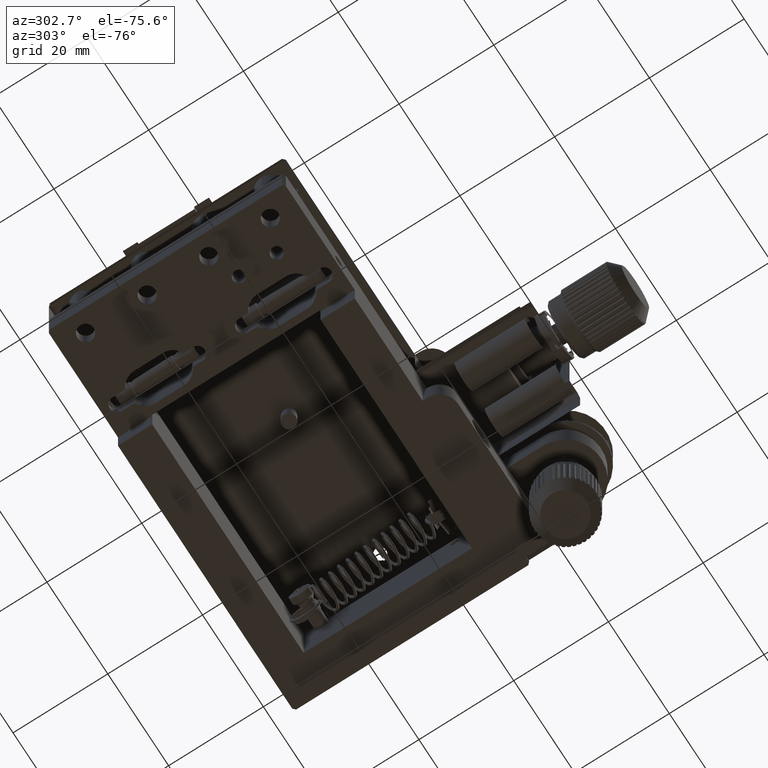
[diagram: clean part render]
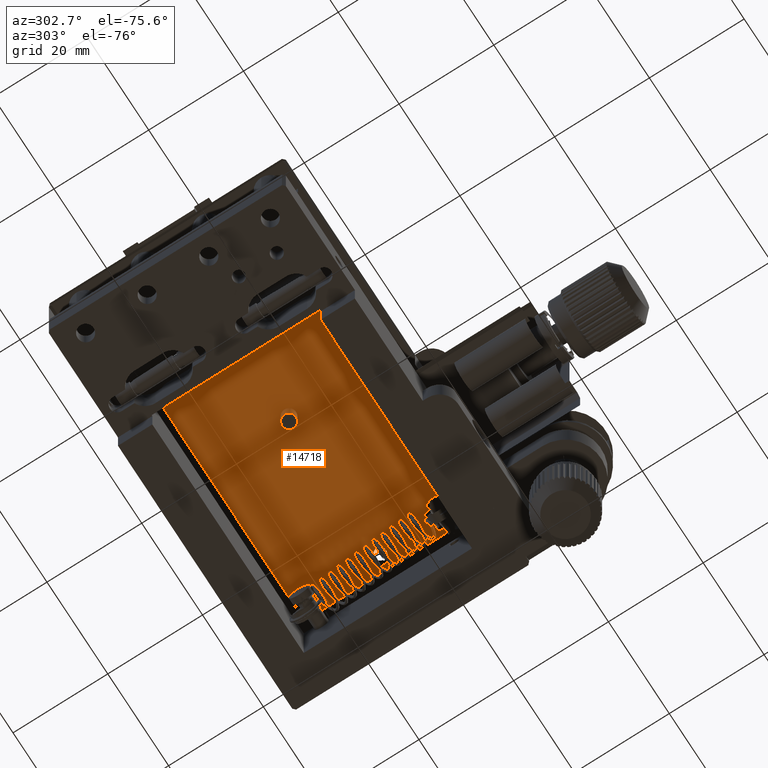
[diagram: same view with one face highlighted and labeled with its STEP entity id]
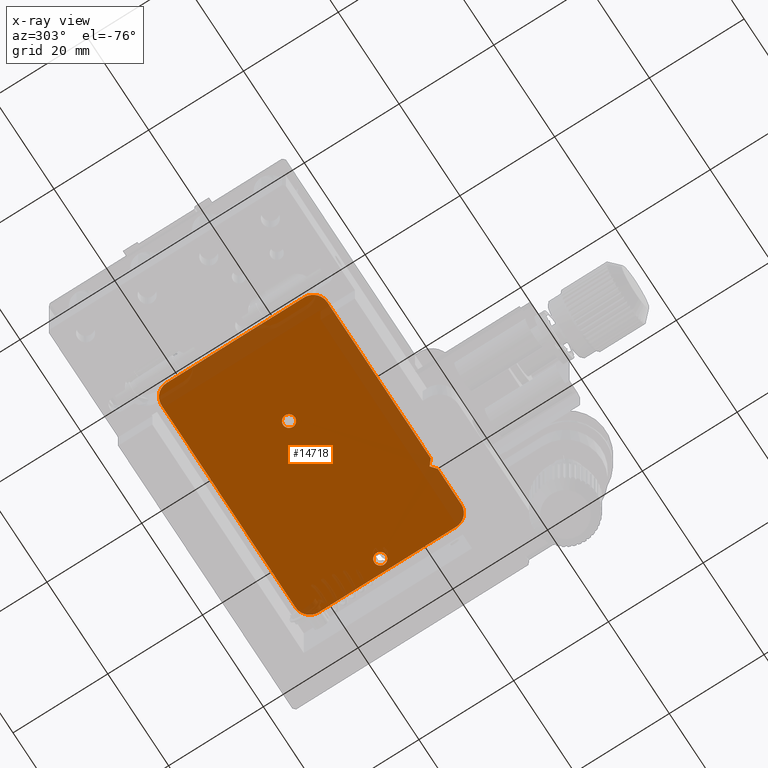
[diagram: x-ray of the same camera — body ghosted, the highlighted face saturated]
A machine part, auxiliary view. The second image highlights one B-rep face of the part: STEP entity #14718.
The next image is the same camera in x-ray: the body ghosted, the highlighted face saturated — about 14% of this face is hidden behind the body in this view.
In plain terms, the highlighted face is a freeform B-spline surface patch.
Its self-contained STEP definition (entity closure, byte-faithful):
#82 = EDGE_LOOP ( 'NONE', ( #16451, #20961 ) ) ;
#109 = B_SPLINE_CURVE_WITH_KNOTS ( 'NONE', 3,
 ( #25756, #23165, #11212, #28169, #490, #11932, #16737, #11752, #14715, #34398, #9152, #25395, #30729, #5652, #5469, #119, #22618, #29056, #29585, #34938, #23522, #3774, #1564, #17825, #15078, #15599, #32353, #12466, #9508, #7094, #21125, #12829, #18005, #26828 ),
 .UNSPECIFIED., .F., .F.,
 ( 4, 1, 1, 2, 2, 2, 1, 1, 2, 2, 2, 1, 1, 2, 2, 2, 1, 1, 2, 2, 4 ),
 ( 0.000000000000000000, 0.06250000000001681988, 0.09375000000002522982, 0.1093750000000286576, 0.1250000000000320854, 0.2500000000000534017, 0.3125000000000622835, 0.3437500000000686673, 0.3593750000000696110, 0.3750000000000705547, 0.5000000000000831557, 0.5625000000000921485, 0.5937500000000939249, 0.6093750000000921485, 0.6250000000000903722, 0.7500000000000577316, 0.8125000000000414113, 0.8437500000000344169, 0.8593750000000306422, 0.8750000000000268674, 1.000000000000000000 ),
 .UNSPECIFIED. ) ;
#119 = CARTESIAN_POINT ( 'NONE',  ( 37.56938166610387952, -7.655620441821686661, 13.50396032735409868 ) ) ;
#137 = CARTESIAN_POINT ( 'NONE',  ( 7.060406818835861742, -7.674041039078614013, 13.50396032735409513 ) ) ;
#326 = CARTESIAN_POINT ( 'NONE',  ( 6.311881144963746415, -7.257975752834531669, 13.50396032735410046 ) ) ;
#490 = CARTESIAN_POINT ( 'NONE',  ( 38.44588200976667736, -6.820653440484450769, 13.50396032735410046 ) ) ;
#504 = CARTESIAN_POINT ( 'NONE',  ( 6.006677295956150964, -6.594095942147188083, 13.50396032735410401 ) ) ;
#889 = CARTESIAN_POINT ( 'NONE',  ( 39.61636223166719617, 8.065051829121900440, 13.50396032735409868 ) ) ;
#1301 = CARTESIAN_POINT ( 'NONE',  ( 6.086527117246703256, -5.994848094405099026, 13.50396032735410046 ) ) ;
#1434 = EDGE_CURVE ( 'NONE', #1539, #27641, #13493, .T. ) ;
#1446 = CARTESIAN_POINT ( 'NONE',  ( 38.13192639974163001, -23.55436471481692351, 13.50396032735409690 ) ) ;
#1458 = CARTESIAN_POINT ( 'NONE',  ( 36.00667729595619448, -6.434948170878140417, 13.50396032735409868 ) ) ;
#1511 = FACE_BOUND ( 'NONE', #82, .T. ) ;
#1539 = VERTEX_POINT ( 'NONE', #12953 ) ;
#1564 = CARTESIAN_POINT ( 'NONE',  ( 36.81657721948447914, -7.605098349589458628, 13.50396032735410046 ) ) ;
#1626 = CARTESIAN_POINT ( 'NONE',  ( 38.45639688987188265, -23.33754482375473671, 13.50396032735410046 ) ) ;
#1642 = CARTESIAN_POINT ( 'NONE',  ( 38.47742242139879210, -6.122427603908243476, 13.50396032735410046 ) ) ;
#1832 = CARTESIAN_POINT ( 'NONE',  ( 37.87694216680466042, -5.336031213648924520, 13.50396032735410223 ) ) ;
#1956 = EDGE_LOOP ( 'NONE', ( #32575, #20954 ) ) ;
#2035 = CARTESIAN_POINT ( 'NONE',  ( 7.679672434682926152, -5.258525470181089290, 13.50396032735409513 ) ) ;
#2222 = CARTESIAN_POINT ( 'NONE',  ( 7.586010348638112966, -5.227868683269324634, 13.50396032735409868 ) ) ;
#2502 =( BOUNDED_CURVE ( )  B_SPLINE_CURVE ( 1, ( #23483, #20028 ),
 .UNSPECIFIED., .F., .F. ) 
 B_SPLINE_CURVE_WITH_KNOTS ( ( 2, 2 ),
 ( 0.000000000000000000, 1.000000000000000000 ),
 .UNSPECIFIED. ) 
 CURVE ( )  GEOMETRIC_REPRESENTATION_ITEM ( )  RATIONAL_B_SPLINE_CURVE ( ( 0.5217803813052015460, 0.5217803813052015460 ) ) 
 REPRESENTATION_ITEM ( '' )  );
#2725 = CARTESIAN_POINT ( 'NONE',  ( 6.110831337281052988, -6.934960762351534136, 13.50396032735409868 ) ) ;
#2752 = CARTESIAN_POINT ( 'NONE',  ( -10.38363776833280028, 8.065051829121859583, 13.50396032735409868 ) ) ;
#2821 = VERTEX_POINT ( 'NONE', #32119 ) ;
#3077 = VERTEX_POINT ( 'NONE', #35815 ) ;
#3085 = CARTESIAN_POINT ( 'NONE',  ( 7.981092332771297038, -7.460222803266768565, 13.50396032735409513 ) ) ;
#3168 = ORIENTED_EDGE ( 'NONE', *, *, #22809, .T. ) ;
#3265 = CARTESIAN_POINT ( 'NONE',  ( 6.101755638267483128, -6.913516285334527112, 13.50396032735409868 ) ) ;
#3347 = CARTESIAN_POINT ( 'NONE',  ( 6.251082044068543730, -5.672890029750522700, 13.50396032735410046 ) ) ;
#3476 = ORIENTED_EDGE ( 'NONE', *, *, #36439, .F. ) ;
#3774 = CARTESIAN_POINT ( 'NONE',  ( 36.83368215723641725, -7.611370871575199537, 13.50396032735409868 ) ) ;
#4031 = CARTESIAN_POINT ( 'NONE',  ( 37.67967243468280003, -5.258525470181121264, 13.50396032735410046 ) ) ;
#4054 = CARTESIAN_POINT ( 'NONE',  ( 6.067472582145574833, -6.049242901289396457, 13.50396032735410401 ) ) ;
#4393 = CARTESIAN_POINT ( 'NONE',  ( 36.43364970716041995, -5.490152026727568746, 13.50396032735409868 ) ) ;
#4783 = CARTESIAN_POINT ( 'NONE',  ( 8.506677295956144746, -6.275800399609041236, 13.50396032735410046 ) ) ;
#4966 = CARTESIAN_POINT ( 'NONE',  ( 8.506677295956150076, -6.434948170878119988, 13.50396032735409868 ) ) ;
#5005 = EDGE_CURVE ( 'NONE', #24343, #21466, #6334, .T. ) ;
#5469 = CARTESIAN_POINT ( 'NONE',  ( 37.73522243500902107, -7.589878935379255509, 13.50396032735410046 ) ) ;
#5652 = CARTESIAN_POINT ( 'NONE',  ( 37.75668989063014891, -7.580794126352358830, 13.50396032735410223 ) ) ;
#5724 = CARTESIAN_POINT ( 'NONE',  ( 36.61636223166719617, 11.06505182912189866, 13.50396032735409868 ) ) ;
#5848 = CARTESIAN_POINT ( 'NONE',  ( 7.756689890629166584, -7.580794126347959683, 13.50396032735410401 ) ) ;
#6029 = CARTESIAN_POINT ( 'NONE',  ( 6.156569483213893967, -7.031489960712089982, 13.50396032735410223 ) ) ;
#6159 = ORIENTED_EDGE ( 'NONE', *, *, #29533, .F. ) ;
#6334 = B_SPLINE_CURVE_WITH_KNOTS ( 'NONE', 1,
 ( #6557, #26843 ),
 .UNSPECIFIED., .F., .F.,
 ( 2, 2 ),
 ( 0.000000000000000000, 1.000000000000000000 ),
 .UNSPECIFIED. ) ;
#6557 = CARTESIAN_POINT ( 'NONE',  ( 39.61636223166719617, 8.065051829121900440, 13.50396032735409868 ) ) ;
#6803 = CARTESIAN_POINT ( 'NONE',  ( 36.53226225911733849, -5.409673538496440059, 13.50396032735409690 ) ) ;
#7008 = CARTESIAN_POINT ( 'NONE',  ( 7.696777372422936025, -5.264797992163294360, 13.50396032735409868 ) ) ;
#7064 = CARTESIAN_POINT ( 'NONE',  ( -10.38363776833280028, -20.93494817087819726, 13.50396032735409868 ) ) ;
#7094 = CARTESIAN_POINT ( 'NONE',  ( 36.11083133727169781, -6.934960762343051144, 13.50396032735410046 ) ) ;
#7171 = CARTESIAN_POINT ( 'NONE',  ( 36.00667729595619448, -6.355567514688370778, 13.50396032735409690 ) ) ;
#7356 = ORIENTED_EDGE ( 'NONE', *, *, #21259, .F. ) ;
#7360 = CARTESIAN_POINT ( 'NONE',  ( 38.38477252216718227, -5.895957464291073258, 13.50396032735409868 ) ) ;
#7564 = CARTESIAN_POINT ( 'NONE',  ( 7.642305196319972183, -5.245712866958010423, 13.50396032735409868 ) ) ;
#7741 = CARTESIAN_POINT ( 'NONE',  ( -7.383637768332810047, 11.06505182912189866, 13.50396032735409868 ) ) ;
#7782 = CARTESIAN_POINT ( 'NONE',  ( 28.90232121969510004, -23.93494817087819726, 13.50396032735409868 ) ) ;
#8272 = CARTESIAN_POINT ( 'NONE',  ( 8.495706717997153490, -6.631379117531666978, 13.50396032735409513 ) ) ;
#8351 = VERTEX_POINT ( 'NONE', #27105 ) ;
#8637 = CARTESIAN_POINT ( 'NONE',  ( 6.927344243280642466, -7.642027658491671538, 13.50396032735410046 ) ) ;
#8755 = CARTESIAN_POINT ( 'NONE',  ( -7.383637768332810047, -23.93494817087815107, 13.50396032735409868 ) ) ;
#8761 =( BOUNDED_CURVE ( )  B_SPLINE_CURVE ( 3, ( #2752, #10518, #33539, #7741 ),
 .UNSPECIFIED., .F., .F. ) 
 B_SPLINE_CURVE_WITH_KNOTS ( ( 4, 4 ),
 ( 0.000000000000000000, 1.000000000000000000 ),
 .UNSPECIFIED. ) 
 CURVE ( )  GEOMETRIC_REPRESENTATION_ITEM ( )  RATIONAL_B_SPLINE_CURVE ( ( 1.000000000000000000, 0.8047378541243650485, 0.8047378541243650485, 1.000000000000000000 ) ) 
 REPRESENTATION_ITEM ( '' )  );
#8807 = CARTESIAN_POINT ( 'NONE',  ( 8.506677295956146523, -6.514328827040709591, 13.50396032735410046 ) ) ;
#9066 = CARTESIAN_POINT ( 'NONE',  ( 6.943972925789100969, -5.214275899934610159, 13.50396032735409690 ) ) ;
#9152 = CARTESIAN_POINT ( 'NONE',  ( 37.98109233277499186, -7.460222803283002690, 13.50396032735409513 ) ) ;
#9508 = CARTESIAN_POINT ( 'NONE',  ( 36.12858206971723973, -6.973938877445245765, 13.50396032735409868 ) ) ;
#9579 = CARTESIAN_POINT ( 'NONE',  ( 36.25108204409819734, -5.672890029729671824, 13.50396032735409868 ) ) ;
#9786 = CARTESIAN_POINT ( 'NONE',  ( 6.532262259143150729, -5.409673538478262600, 13.50396032735409690 ) ) ;
#9951 = CARTESIAN_POINT ( 'NONE',  ( 36.71768658360302595, -5.306852950428917026, 13.50396032735410223 ) ) ;
#10338 = CARTESIAN_POINT ( 'NONE',  ( 8.477422421398834729, -6.122427603958259468, 13.50396032735410223 ) ) ;
#10386 = VERTEX_POINT ( 'NONE', #18361 ) ;
#10518 = CARTESIAN_POINT ( 'NONE',  ( -10.38363776833280205, 9.822411142002563267, 13.50396032735409513 ) ) ;
#11128 = B_SPLINE_CURVE_WITH_KNOTS ( 'NONE', 3,
 ( #1458, #7171, #34835, #12359, #12727, #23957, #35019, #35202, #9579, #4393, #6803, #32789, #9951, #20839, #21202, #27102, #32607, #15145, #29662, #29302, #15860, #4031, #24142, #1832, #32432, #18260, #18079, #26908, #7360, #21024, #18631, #1642, #23594, #12902 ),
 .UNSPECIFIED., .F., .F.,
 ( 4, 1, 1, 2, 2, 2, 1, 1, 2, 2, 2, 1, 1, 2, 2, 2, 1, 1, 2, 2, 4 ),
 ( 0.000000000000000000, 0.06249999999999829303, 0.09374999999999744649, 0.1093749999999970163, 0.1249999999999965861, 0.2499999999999778788, 0.3124999999999705236, 0.3437499999999666933, 0.3593749999999647504, 0.3749999999999628630, 0.4999999999999769629, 0.5624999999999840128, 0.5937499999999903411, 0.6093749999999907851, 0.6249999999999912292, 0.7499999999999955591, 0.8124999999999980016, 0.8437500000000003331, 0.8593750000000001110, 0.8749999999999997780, 1.000000000000000000 ),
 .UNSPECIFIED. ) ;
#11212 = CARTESIAN_POINT ( 'NONE',  ( 38.49570671799709487, -6.631379117546980062, 13.50396032735409690 ) ) ;
#11405 = CARTESIAN_POINT ( 'NONE',  ( 8.463709198950091661, -6.764401575703583802, 13.50396032735409690 ) ) ;
#11583 = CARTESIAN_POINT ( 'NONE',  ( -10.38363776833280028, -20.93494817087819726, 13.50396032735409868 ) ) ;
#11752 = CARTESIAN_POINT ( 'NONE',  ( 38.35559425321162763, -7.055213041673804142, 13.50396032735410046 ) ) ;
#11848 = CARTESIAN_POINT ( 'NONE',  ( 6.756664701283704666, -5.289102215405268481, 13.50396032735410046 ) ) ;
#11932 = CARTESIAN_POINT ( 'NONE',  ( 38.43308300214783202, -6.857986292517420424, 13.50396032735409690 ) ) ;
#12324 = CARTESIAN_POINT ( 'NONE',  ( 38.36008467261316923, 11.06505182912189866, 13.50396032735411289 ) ) ;
#12347 = CARTESIAN_POINT ( 'NONE',  ( 37.01416963958008211, -23.93494817087820081, 13.50396032735410046 ) ) ;
#12359 = CARTESIAN_POINT ( 'NONE',  ( 36.04964539296226178, -6.105494766016980712, 13.50396032735409868 ) ) ;
#12376 = CARTESIAN_POINT ( 'NONE',  ( 6.006677295956169615, -6.434948170878119988, 13.50396032735409868 ) ) ;
#12428 = CARTESIAN_POINT ( 'NONE',  ( 26.61103337221720011, -23.93494817087819726, 13.50396032735409868 ) ) ;
#12466 = CARTESIAN_POINT ( 'NONE',  ( 36.15656948318763142, -7.031489960688215746, 13.50396032735410401 ) ) ;
#12569 = CARTESIAN_POINT ( 'NONE',  ( 39.61636223166719617, -20.93494817087819726, 13.50396032735409868 ) ) ;
#12724 = EDGE_CURVE ( 'NONE', #3077, #34511, #11128, .T. ) ;
#12727 = CARTESIAN_POINT ( 'NONE',  ( 36.06747258214563345, -6.049242901256245197, 13.50396032735410401 ) ) ;
#12746 = CARTESIAN_POINT ( 'NONE',  ( 8.201473446950966917, -5.611920588927716835, 13.50396032735410046 ) ) ;
#12829 = CARTESIAN_POINT ( 'NONE',  ( 36.03593217051352582, -6.747468737738573807, 13.50396032735409690 ) ) ;
#12849 = B_SPLINE_CURVE_WITH_KNOTS ( 'NONE', 3,
 ( #12376, #23612, #31548, #20861, #4054, #32083, #1301, #23792, #3347, #35041, #9786, #31371, #25852, #11848, #34315, #9066, #20331, #15881, #13488, #2222, #7564, #2035, #7008, #24728, #30240, #12746, #32266, #21591, #24536, #15696, #15522, #10338, #4783, #4966 ),
 .UNSPECIFIED., .F., .F.,
 ( 4, 1, 1, 2, 2, 2, 1, 1, 2, 2, 2, 1, 1, 2, 2, 2, 1, 1, 2, 2, 4 ),
 ( 0.000000000000000000, 0.06249999999999890365, 0.09374999999999829303, 0.1093749999999980849, 0.1249999999999978628, 0.2499999999999993339, 0.3125000000000000555, 0.3437500000000004996, 0.3593750000000009992, 0.3750000000000014988, 0.5000000000000044409, 0.5625000000000058842, 0.5937500000000063283, 0.6093750000000066613, 0.6250000000000067724, 0.7500000000000071054, 0.8125000000000074385, 0.8437500000000072164, 0.8593750000000067724, 0.8750000000000064393, 1.000000000000000000 ),
 .UNSPECIFIED. ) ;
#12902 = CARTESIAN_POINT ( 'NONE',  ( 38.50667729595609501, -6.434948170878140417, 13.50396032735409868 ) ) ;
#12919 = B_SPLINE_SURFACE_WITH_KNOTS ( 'NONE', 1, 1, ( 
 ( #34884, #24011 ),
 ( #35254, #16284 ) ),
 .UNSPECIFIED., .F., .F., .F.,
 ( 2, 2 ),
 ( 2, 2 ),
 ( 0.000000000000000000, 1.000000000000000000 ),
 ( 0.000000000000000000, 1.000000000000000000 ),
 .UNSPECIFIED. ) ;
#12953 = CARTESIAN_POINT ( 'NONE',  ( 28.90232121969510004, -23.93494817087819726, 13.50396032735409868 ) ) ;
#13488 = CARTESIAN_POINT ( 'NONE',  ( 7.452947773085051075, -5.195855302683958676, 13.50396032735410223 ) ) ;
#13493 =( BOUNDED_CURVE ( )  B_SPLINE_CURVE ( 1, ( #7782, #30449 ),
 .UNSPECIFIED., .F., .F. ) 
 B_SPLINE_CURVE_WITH_KNOTS ( ( 2, 2 ),
 ( 0.000000000000000000, 1.000000000000000000 ),
 .UNSPECIFIED. ) 
 CURVE ( )  GEOMETRIC_REPRESENTATION_ITEM ( )  RATIONAL_B_SPLINE_CURVE ( ( 0.5217803813051979933, 0.5217803813051981043 ) ) 
 REPRESENTATION_ITEM ( '' )  );
#13670 = B_SPLINE_CURVE_WITH_KNOTS ( 'NONE', 1,
 ( #13777, #30709 ),
 .UNSPECIFIED., .F., .F.,
 ( 2, 2 ),
 ( 0.000000000000000000, 1.000000000000000000 ),
 .UNSPECIFIED. ) ;
#13742 = CARTESIAN_POINT ( 'NONE',  ( -10.38363776833280028, -20.93494817087819726, 13.50396032735409868 ) ) ;
#13777 = CARTESIAN_POINT ( 'NONE',  ( -7.383637768332810047, 11.06505182912189866, 13.50396032735409868 ) ) ;
#13918 = CARTESIAN_POINT ( 'NONE',  ( 36.61636223166719617, -23.93494817087819726, 13.50396032735409868 ) ) ;
#13991 = CARTESIAN_POINT ( 'NONE',  ( 6.035932170513483186, -6.747468737797960081, 13.50396032735410223 ) ) ;
#13993 = ORIENTED_EDGE ( 'NONE', *, *, #32907, .F. ) ;
#14117 = ORIENTED_EDGE ( 'NONE', *, *, #1434, .F. ) ;
#14178 = CARTESIAN_POINT ( 'NONE',  ( 8.506677295956150076, -6.434948170878119988, 13.50396032735409868 ) ) ;
#14365 = CARTESIAN_POINT ( 'NONE',  ( 7.415255214529095085, -7.684875660981574264, 13.50396032735409868 ) ) ;
#14715 = CARTESIAN_POINT ( 'NONE',  ( 38.26227254783697163, -7.197006312000103989, 13.50396032735409868 ) ) ;
#14718 = ADVANCED_FACE ( 'NONE', ( #18309, #1511, #31931 ), #12919, .T. ) ;
#15078 = CARTESIAN_POINT ( 'NONE',  ( 36.49461916853167764, -7.440543436451475756, 13.50396032735409690 ) ) ;
#15145 = CARTESIAN_POINT ( 'NONE',  ( 37.33596625524702262, -5.184911915933499316, 13.50396032735409335 ) ) ;
#15329 = EDGE_CURVE ( 'NONE', #22085, #2821, #21479, .T. ) ;
#15522 = CARTESIAN_POINT ( 'NONE',  ( 8.411598953644869425, -5.956380056421742175, 13.50396032735409868 ) ) ;
#15599 = CARTESIAN_POINT ( 'NONE',  ( 36.31188114494374730, -7.257975752816359538, 13.50396032735410046 ) ) ;
#15605 = EDGE_CURVE ( 'NONE', #2821, #10386, #8761, .T. ) ;
#15696 = CARTESIAN_POINT ( 'NONE',  ( 8.402523254632402683, -5.934935579407537354, 13.50396032735409868 ) ) ;
#15860 = CARTESIAN_POINT ( 'NONE',  ( 37.64230519631963290, -5.245712866958042397, 13.50396032735410046 ) ) ;
#15881 = CARTESIAN_POINT ( 'NONE',  ( 7.335966255247496903, -5.184911915933466453, 13.50396032735410223 ) ) ;
#16247 = CARTESIAN_POINT ( 'NONE',  ( -7.383637768332810047, -23.93494817087815107, 13.50396032735409868 ) ) ;
#16284 = CARTESIAN_POINT ( 'NONE',  ( -10.38363776833280028, -23.93494817087819726, 13.50396032735409868 ) ) ;
#16451 = ORIENTED_EDGE ( 'NONE', *, *, #25332, .T. ) ;
#16737 = CARTESIAN_POINT ( 'NONE',  ( 38.42682747466820814, -6.875048247350046715, 13.50396032735410046 ) ) ;
#16891 = B_SPLINE_CURVE_WITH_KNOTS ( 'NONE', 3,
 ( #26894, #12347, #24126, #1446, #1626, #18430, #21187, #35005, #32046, #29649 ),
 .UNSPECIFIED., .F., .F.,
 ( 4, 2, 2, 2, 4 ),
 ( 0.000000000000000000, 0.2500000000000000000, 0.5000000000000000000, 0.7500000000000000000, 1.000000000000000000 ),
 .UNSPECIFIED. ) ;
#17120 = CARTESIAN_POINT ( 'NONE',  ( 7.569381666169030076, -7.655620441814334320, 13.50396032735410046 ) ) ;
#17168 = VERTEX_POINT ( 'NONE', #16247 ) ;
#17300 = CARTESIAN_POINT ( 'NONE',  ( 6.816577219488602069, -7.605098349593125029, 13.50396032735410223 ) ) ;
#17825 = CARTESIAN_POINT ( 'NONE',  ( 36.63641242515913632, -7.533865128140076806, 13.50396032735409868 ) ) ;
#18005 = CARTESIAN_POINT ( 'NONE',  ( 36.00667729595618738, -6.594095942087778717, 13.50396032735409690 ) ) ;
#18079 = CARTESIAN_POINT ( 'NONE',  ( 38.28195194028831594, -5.710533145998576643, 13.50396032735410046 ) ) ;
#18260 = CARTESIAN_POINT ( 'NONE',  ( 38.20147344693557301, -5.611920588916274433, 13.50396032735410223 ) ) ;
#18309 = FACE_BOUND ( 'NONE', #1956, .T. ) ;
#18361 = CARTESIAN_POINT ( 'NONE',  ( -7.383637768332810047, 11.06505182912189866, 13.50396032735409868 ) ) ;
#18430 = CARTESIAN_POINT ( 'NONE',  ( 39.01896826058180068, -22.77499220512095235, 13.50396032735409690 ) ) ;
#18631 = CARTESIAN_POINT ( 'NONE',  ( 38.41159895364480548, -5.956380056428033143, 13.50396032735409868 ) ) ;
#19489 = EDGE_CURVE ( 'NONE', #27641, #19675, #2502, .T. ) ;
#19675 = VERTEX_POINT ( 'NONE', #12428 ) ;
#19894 = CARTESIAN_POINT ( 'NONE',  ( 7.795668008297887752, -7.563043391330679377, 13.50396032735409868 ) ) ;
#20028 = CARTESIAN_POINT ( 'NONE',  ( 26.61103337221720011, -23.93494817087819726, 13.50396032735409868 ) ) ;
#20072 = CARTESIAN_POINT ( 'NONE',  ( 6.871049395596476650, -7.624183474801295546, 13.50396032735409690 ) ) ;
#20246 =( BOUNDED_CURVE ( )  B_SPLINE_CURVE ( 3, ( #26987, #24405, #35093, #7064 ),
 .UNSPECIFIED., .F., .F. ) 
 B_SPLINE_CURVE_WITH_KNOTS ( ( 4, 4 ),
 ( 0.000000000000000000, 1.000000000000000000 ),
 .UNSPECIFIED. ) 
 CURVE ( )  GEOMETRIC_REPRESENTATION_ITEM ( )  RATIONAL_B_SPLINE_CURVE ( ( 1.000000000000000000, 0.8047378541243650485, 0.8047378541243650485, 1.000000000000000000 ) ) 
 REPRESENTATION_ITEM ( '' )  );
#20248 = CARTESIAN_POINT ( 'NONE',  ( 36.61636223166719617, -23.93494817087819726, 13.50396032735409868 ) ) ;
#20331 = CARTESIAN_POINT ( 'NONE',  ( 7.098099377373442209, -5.185020680767477685, 13.50396032735409868 ) ) ;
#20839 = CARTESIAN_POINT ( 'NONE',  ( 36.75666470127682572, -5.289102215410141916, 13.50396032735410046 ) ) ;
#20861 = CARTESIAN_POINT ( 'NONE',  ( 6.049645392962212043, -6.105494766068551016, 13.50396032735409690 ) ) ;
#20954 = ORIENTED_EDGE ( 'NONE', *, *, #25478, .T. ) ;
#20961 = ORIENTED_EDGE ( 'NONE', *, *, #12724, .T. ) ;
#21024 = CARTESIAN_POINT ( 'NONE',  ( 38.40252325462513028, -5.934935579402179862, 13.50396032735409513 ) ) ;
#21125 = CARTESIAN_POINT ( 'NONE',  ( 36.10175563826751954, -6.913516285342026890, 13.50396032735410046 ) ) ;
#21187 = CARTESIAN_POINT ( 'NONE',  ( 39.23575989422364074, -22.45052327250229851, 13.50396032735410046 ) ) ;
#21202 = CARTESIAN_POINT ( 'NONE',  ( 36.77813215690833459, -5.280017406377041311, 13.50396032735410223 ) ) ;
#21259 = EDGE_CURVE ( 'NONE', #19675, #17168, #27545, .T. ) ;
#21466 = VERTEX_POINT ( 'NONE', #12569 ) ;
#21479 = B_SPLINE_CURVE_WITH_KNOTS ( 'NONE', 1,
 ( #13742, #32518 ),
 .UNSPECIFIED., .F., .F.,
 ( 2, 2 ),
 ( -1.000000000000000000, 0.000000000000000000 ),
 .UNSPECIFIED. ) ;
#21492 = ORIENTED_EDGE ( 'NONE', *, *, #15605, .F. ) ;
#21591 = CARTESIAN_POINT ( 'NONE',  ( 8.356785108701547671, -5.838406381052029026, 13.50396032735409868 ) ) ;
#22044 = EDGE_CURVE ( 'NONE', #28672, #1539, #31889, .T. ) ;
#22085 = VERTEX_POINT ( 'NONE', #11583 ) ;
#22618 = CARTESIAN_POINT ( 'NONE',  ( 37.41525521450895297, -7.684875660988804036, 13.50396032735409868 ) ) ;
#22634 = CARTESIAN_POINT ( 'NONE',  ( 6.128582069734127558, -6.973938877460575725, 13.50396032735410223 ) ) ;
#22809 = EDGE_CURVE ( 'NONE', #28672, #21466, #16891, .T. ) ;
#23000 = CARTESIAN_POINT ( 'NONE',  ( 6.833682157231680598, -7.611370871576863095, 13.50396032735409690 ) ) ;
#23165 = CARTESIAN_POINT ( 'NONE',  ( 38.50667729595609501, -6.514328827049458148, 13.50396032735410046 ) ) ;
#23176 = EDGE_CURVE ( 'NONE', #27022, #8351, #25173, .T. ) ;
#23483 = CARTESIAN_POINT ( 'NONE',  ( 26.61103337221715748, -22.93494817087820081, 13.50396032735412533 ) ) ;
#23522 = CARTESIAN_POINT ( 'NONE',  ( 36.87104939560498451, -7.624183474798268634, 13.50396032735410046 ) ) ;
#23594 = CARTESIAN_POINT ( 'NONE',  ( 38.50667729595610922, -6.275800399559015474, 13.50396032735410223 ) ) ;
#23612 = CARTESIAN_POINT ( 'NONE',  ( 6.006677295956150076, -6.355567514727668232, 13.50396032735409868 ) ) ;
#23733 = ORIENTED_EDGE ( 'NONE', *, *, #15329, .F. ) ;
#23743 = ORIENTED_EDGE ( 'NONE', *, *, #5005, .F. ) ;
#23792 = CARTESIAN_POINT ( 'NONE',  ( 6.157760338679263867, -5.814683300091399332, 13.50396032735410401 ) ) ;
#23957 = CARTESIAN_POINT ( 'NONE',  ( 36.08027158976448590, -6.011910049230195341, 13.50396032735410223 ) ) ;
#24011 = CARTESIAN_POINT ( 'NONE',  ( 39.61636223166719617, -23.93494817087819726, 13.50396032735409868 ) ) ;
#24126 = CARTESIAN_POINT ( 'NONE',  ( 37.39689865778328937, -23.85880882200723008, 13.50396032735410223 ) ) ;
#24142 = CARTESIAN_POINT ( 'NONE',  ( 37.69677737242158599, -5.264797992162793427, 13.50396032735410223 ) ) ;
#24343 = VERTEX_POINT ( 'NONE', #27751 ) ;
#24405 = CARTESIAN_POINT ( 'NONE',  ( -9.140997081213516395, -23.93494817087811910, 13.50396032735409513 ) ) ;
#24536 = CARTESIAN_POINT ( 'NONE',  ( 8.384772522180218957, -5.895957464300745521, 13.50396032735410046 ) ) ;
#24728 = CARTESIAN_POINT ( 'NONE',  ( 7.876942166792513689, -5.336031213644595539, 13.50396032735409868 ) ) ;
#25173 = B_SPLINE_CURVE_WITH_KNOTS ( 'NONE', 3,
 ( #14178, #8807, #8272, #11405, #30925, #28362, #33515, #25411, #33694, #25771, #3085, #28545, #19894, #5848, #34053, #17120, #14365, #25593, #137, #8637, #20072, #23000, #17300, #31294, #27998, #326, #31108, #6029, #22634, #2725, #3265, #13991, #504, #34235 ),
 .UNSPECIFIED., .F., .F.,
 ( 4, 1, 1, 2, 2, 2, 1, 1, 2, 2, 2, 1, 1, 2, 2, 2, 1, 1, 2, 2, 4 ),
 ( 0.000000000000000000, 0.06249999999999626688, 0.09374999999999474032, 0.1093749999999934636, 0.1249999999999921868, 0.2499999999999865663, 0.3124999999999837907, 0.3437499999999825695, 0.3593749999999825140, 0.3749999999999824585, 0.4999999999999843459, 0.5624999999999855671, 0.5937499999999865663, 0.6093749999999872324, 0.6249999999999880096, 0.7499999999999911182, 0.8124999999999930056, 0.8437499999999941158, 0.8593749999999947820, 0.8749999999999953371, 1.000000000000000000 ),
 .UNSPECIFIED. ) ;
#25332 = EDGE_CURVE ( 'NONE', #34511, #3077, #109, .T. ) ;
#25395 = CARTESIAN_POINT ( 'NONE',  ( 37.85321909475179325, -7.535055974657836053, 13.50396032735409690 ) ) ;
#25411 = CARTESIAN_POINT ( 'NONE',  ( 8.355594253209130073, -7.055213041699190057, 13.50396032735409868 ) ) ;
#25478 = EDGE_CURVE ( 'NONE', #8351, #27022, #12849, .T. ) ;
#25593 = CARTESIAN_POINT ( 'NONE',  ( 7.177388336669746849, -7.684984425826399956, 13.50396032735410046 ) ) ;
#25756 = CARTESIAN_POINT ( 'NONE',  ( 38.50667729595609501, -6.434948170878140417, 13.50396032735409868 ) ) ;
#25771 = CARTESIAN_POINT ( 'NONE',  ( 8.079704884738378112, -7.379744315032645829, 13.50396032735409335 ) ) ;
#25834 = CARTESIAN_POINT ( 'NONE',  ( 8.506677295956150076, -6.434948170878119988, 13.50396032735409868 ) ) ;
#25852 = CARTESIAN_POINT ( 'NONE',  ( 6.717686583615444462, -5.306852950420146264, 13.50396032735409868 ) ) ;
#26066 = CARTESIAN_POINT ( 'NONE',  ( 26.61103337221720011, -23.93494817087819726, 13.50396032735409868 ) ) ;
#26324 = CARTESIAN_POINT ( 'NONE',  ( 39.61636223166704696, 9.836004322172991365, 13.50396032735411467 ) ) ;
#26828 = CARTESIAN_POINT ( 'NONE',  ( 36.00667729595619448, -6.434948170878140417, 13.50396032735409868 ) ) ;
#26843 = CARTESIAN_POINT ( 'NONE',  ( 39.61636223166719617, -20.93494817087819726, 13.50396032735409868 ) ) ;
#26894 = CARTESIAN_POINT ( 'NONE',  ( 36.61636223166719617, -23.93494817087819726, 13.50396032735409868 ) ) ;
#26908 = CARTESIAN_POINT ( 'NONE',  ( 38.35678510868129365, -5.838406381036963744, 13.50396032735410046 ) ) ;
#26987 = CARTESIAN_POINT ( 'NONE',  ( -7.383637768332810047, -23.93494817087815107, 13.50396032735409868 ) ) ;
#27022 = VERTEX_POINT ( 'NONE', #25834 ) ;
#27102 = CARTESIAN_POINT ( 'NONE',  ( 36.94397292576805114, -5.214275899934634140, 13.50396032735409690 ) ) ;
#27105 = CARTESIAN_POINT ( 'NONE',  ( 6.006677295956169615, -6.434948170878119988, 13.50396032735409868 ) ) ;
#27545 = B_SPLINE_CURVE_WITH_KNOTS ( 'NONE', 1,
 ( #26066, #8755 ),
 .UNSPECIFIED., .F., .F.,
 ( 2, 2 ),
 ( 0.000000000000000000, 1.000000000000000000 ),
 .UNSPECIFIED. ) ;
#27641 = VERTEX_POINT ( 'NONE', #31231 ) ;
#27751 = CARTESIAN_POINT ( 'NONE',  ( 39.61636223166719617, 8.065051829121900440, 13.50396032735409868 ) ) ;
#27998 = CARTESIAN_POINT ( 'NONE',  ( 6.494619168491492900, -7.440543436414909451, 13.50396032735409690 ) ) ;
#28169 = CARTESIAN_POINT ( 'NONE',  ( 38.46370919895003482, -6.764401575715060844, 13.50396032735410401 ) ) ;
#28362 = CARTESIAN_POINT ( 'NONE',  ( 8.433083002147903073, -6.857986292513321480, 13.50396032735410046 ) ) ;
#28420 = EDGE_LOOP ( 'NONE', ( #3168, #23743, #6159, #13993, #21492, #23733, #3476, #7356, #32577, #14117, #28447 ) ) ;
#28447 = ORIENTED_EDGE ( 'NONE', *, *, #22044, .F. ) ;
#28545 = CARTESIAN_POINT ( 'NONE',  ( 7.853219094749008811, -7.535055974645648469, 13.50396032735409868 ) ) ;
#28672 = VERTEX_POINT ( 'NONE', #13918 ) ;
#29056 = CARTESIAN_POINT ( 'NONE',  ( 37.17738833667980458, -7.684984425822786847, 13.50396032735410046 ) ) ;
#29091 = CARTESIAN_POINT ( 'NONE',  ( 36.61636223166719617, 11.06505182912189866, 13.50396032735409868 ) ) ;
#29302 = CARTESIAN_POINT ( 'NONE',  ( 37.58601034863747969, -5.227868683269358385, 13.50396032735410401 ) ) ;
#29533 = EDGE_CURVE ( 'NONE', #32171, #24343, #32817, .T. ) ;
#29585 = CARTESIAN_POINT ( 'NONE',  ( 37.06040681885349386, -7.674041039072288406, 13.50396032735409868 ) ) ;
#29649 = CARTESIAN_POINT ( 'NONE',  ( 39.61636223166719617, -20.93494817087819726, 13.50396032735409868 ) ) ;
#29662 = CARTESIAN_POINT ( 'NONE',  ( 37.45294777308416911, -5.195855302683997756, 13.50396032735409868 ) ) ;
#30240 = CARTESIAN_POINT ( 'NONE',  ( 8.018735423416108787, -5.429352905329380974, 13.50396032735409690 ) ) ;
#30449 = CARTESIAN_POINT ( 'NONE',  ( 28.90232121969506096, -22.93494817087820081, 13.50396032735408092 ) ) ;
#30709 = CARTESIAN_POINT ( 'NONE',  ( 36.61636223166719617, 11.06505182912189866, 13.50396032735409868 ) ) ;
#30729 = CARTESIAN_POINT ( 'NONE',  ( 37.79566800829965700, -7.563043391338545973, 13.50396032735410223 ) ) ;
#30743 = CARTESIAN_POINT ( 'NONE',  ( 28.90232121969510004, -23.93494817087819726, 13.50396032735409868 ) ) ;
#30925 = CARTESIAN_POINT ( 'NONE',  ( 8.445882009766728871, -6.820653440477069118, 13.50396032735409868 ) ) ;
#31108 = CARTESIAN_POINT ( 'NONE',  ( 6.231402651601199771, -7.159363195748075448, 13.50396032735409868 ) ) ;
#31231 = CARTESIAN_POINT ( 'NONE',  ( 27.75667729595614830, -22.93494817087815107, 13.63576089020494031 ) ) ;
#31294 = CARTESIAN_POINT ( 'NONE',  ( 6.636412425125851833, -7.533865128110432963, 13.50396032735410223 ) ) ;
#31371 = CARTESIAN_POINT ( 'NONE',  ( 6.660135497164902496, -5.334840367102173353, 13.50396032735409868 ) ) ;
#31548 = CARTESIAN_POINT ( 'NONE',  ( 6.017647873915141332, -6.238517224245760495, 13.50396032735409690 ) ) ;
#31572 = CARTESIAN_POINT ( 'NONE',  ( 38.50667729595609501, -6.434948170878140417, 13.50396032735409868 ) ) ;
#31889 = B_SPLINE_CURVE_WITH_KNOTS ( 'NONE', 1,
 ( #20248, #30743 ),
 .UNSPECIFIED., .F., .F.,
 ( 2, 2 ),
 ( 0.000000000000000000, 1.000000000000000000 ),
 .UNSPECIFIED. ) ;
#31931 = FACE_OUTER_BOUND ( 'NONE', #28420, .T. ) ;
#32046 = CARTESIAN_POINT ( 'NONE',  ( 39.61636223166720328, -21.33279023107953520, 13.50396032735410046 ) ) ;
#32083 = CARTESIAN_POINT ( 'NONE',  ( 6.080271589764400630, -6.011910049248612609, 13.50396032735410223 ) ) ;
#32119 = CARTESIAN_POINT ( 'NONE',  ( -10.38363776833280028, 8.065051829121859583, 13.50396032735409868 ) ) ;
#32171 = VERTEX_POINT ( 'NONE', #5724 ) ;
#32266 = CARTESIAN_POINT ( 'NONE',  ( 8.281951940315282812, -5.710533146018657469, 13.50396032735409868 ) ) ;
#32353 = CARTESIAN_POINT ( 'NONE',  ( 36.23140265156615669, -7.159363195716221817, 13.50396032735410401 ) ) ;
#32432 = CARTESIAN_POINT ( 'NONE',  ( 38.01873542344691970, -5.429352905352481606, 13.50396032735409690 ) ) ;
#32518 = CARTESIAN_POINT ( 'NONE',  ( -10.38363776833280028, 8.065051829121859583, 13.50396032735409868 ) ) ;
#32575 = ORIENTED_EDGE ( 'NONE', *, *, #23176, .T. ) ;
#32577 = ORIENTED_EDGE ( 'NONE', *, *, #19489, .F. ) ;
#32607 = CARTESIAN_POINT ( 'NONE',  ( 37.09809937737462349, -5.185020680767511436, 13.50396032735409335 ) ) ;
#32789 = CARTESIAN_POINT ( 'NONE',  ( 36.66013549714554642, -5.334840367115821103, 13.50396032735410046 ) ) ;
#32817 =( BOUNDED_CURVE ( )  B_SPLINE_CURVE ( 3, ( #29091, #12324, #26324, #889 ),
 .UNSPECIFIED., .F., .F. ) 
 B_SPLINE_CURVE_WITH_KNOTS ( ( 4, 4 ),
 ( 0.000000000000000000, 1.570796326794895004 ),
 .UNSPECIFIED. ) 
 CURVE ( )  GEOMETRIC_REPRESENTATION_ITEM ( )  RATIONAL_B_SPLINE_CURVE ( ( 1.000000000000000000, 0.7960024381499302137, 0.7837631556442665737, 0.9632821524830090798 ) ) 
 REPRESENTATION_ITEM ( '' )  );
#32907 = EDGE_CURVE ( 'NONE', #10386, #32171, #13670, .T. ) ;
#33515 = CARTESIAN_POINT ( 'NONE',  ( 8.426827474668579399, -6.875048247346873254, 13.50396032735409868 ) ) ;
#33539 = CARTESIAN_POINT ( 'NONE',  ( -9.140997081213516395, 11.06505182912190222, 13.50396032735409513 ) ) ;
#33694 = CARTESIAN_POINT ( 'NONE',  ( 8.262272547841275738, -7.197006312018574548, 13.50396032735409690 ) ) ;
#34053 = CARTESIAN_POINT ( 'NONE',  ( 7.735222435000929764, -7.589878935380093061, 13.50396032735410046 ) ) ;
#34235 = CARTESIAN_POINT ( 'NONE',  ( 6.006677295956169615, -6.434948170878119988, 13.50396032735409868 ) ) ;
#34315 = CARTESIAN_POINT ( 'NONE',  ( 6.778132156905636307, -5.280017406377043088, 13.50396032735409868 ) ) ;
#34398 = CARTESIAN_POINT ( 'NONE',  ( 38.07970488474049375, -7.379744315041934399, 13.50396032735409868 ) ) ;
#34511 = VERTEX_POINT ( 'NONE', #31572 ) ;
#34835 = CARTESIAN_POINT ( 'NONE',  ( 36.01764787391519462, -6.238517224176996834, 13.50396032735409690 ) ) ;
#34884 = CARTESIAN_POINT ( 'NONE',  ( 39.61636223166719617, 11.06505182912189866, 13.50396032735409868 ) ) ;
#34938 = CARTESIAN_POINT ( 'NONE',  ( 36.92734424329385945, -7.642027658486946429, 13.50396032735410223 ) ) ;
#35005 = CARTESIAN_POINT ( 'NONE',  ( 39.54024176417848224, -21.71547366344461949, 13.50396032735410223 ) ) ;
#35019 = CARTESIAN_POINT ( 'NONE',  ( 36.08652711724054996, -5.994848094410237138, 13.50396032735410401 ) ) ;
#35041 = CARTESIAN_POINT ( 'NONE',  ( 6.433649707175145949, -5.490152026717198375, 13.50396032735409335 ) ) ;
#35093 = CARTESIAN_POINT ( 'NONE',  ( -10.38363776833280205, -22.69230748375889206, 13.50396032735409513 ) ) ;
#35202 = CARTESIAN_POINT ( 'NONE',  ( 36.15776033872917594, -5.814683300050305093, 13.50396032735409513 ) ) ;
#35254 = CARTESIAN_POINT ( 'NONE',  ( -10.38363776833280028, 11.06505182912189866, 13.50396032735409868 ) ) ;
#35815 = CARTESIAN_POINT ( 'NONE',  ( 36.00667729595619448, -6.434948170878140417, 13.50396032735409868 ) ) ;
#36439 = EDGE_CURVE ( 'NONE', #17168, #22085, #20246, .T. ) ;